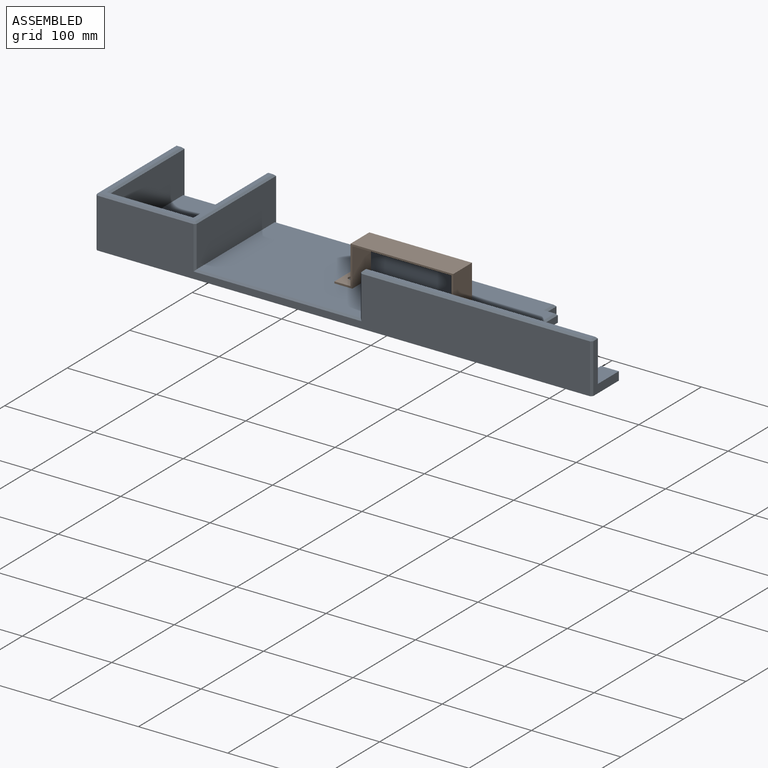
[diagram: assembled view]
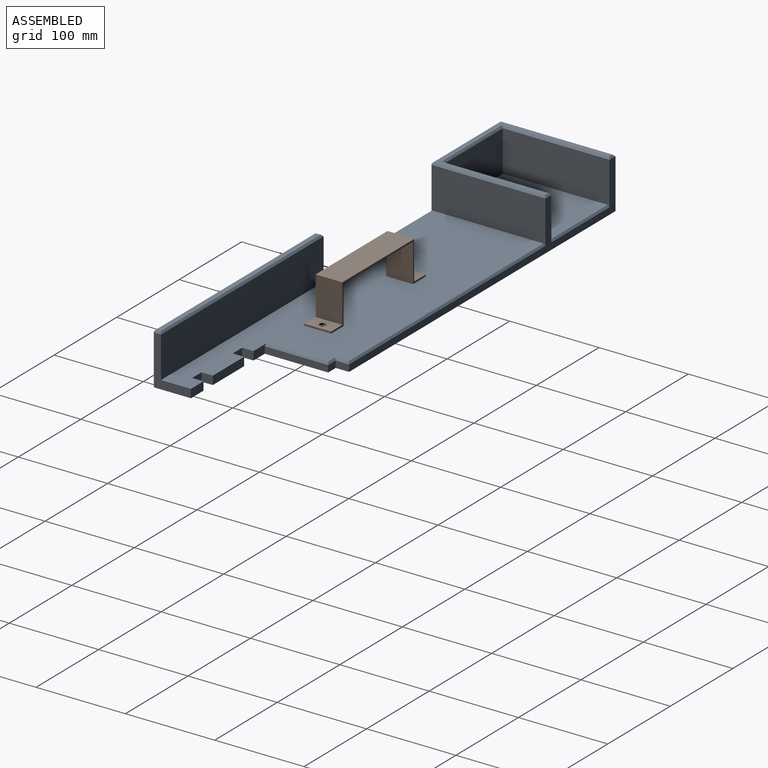
[diagram: assembled view, second angle]
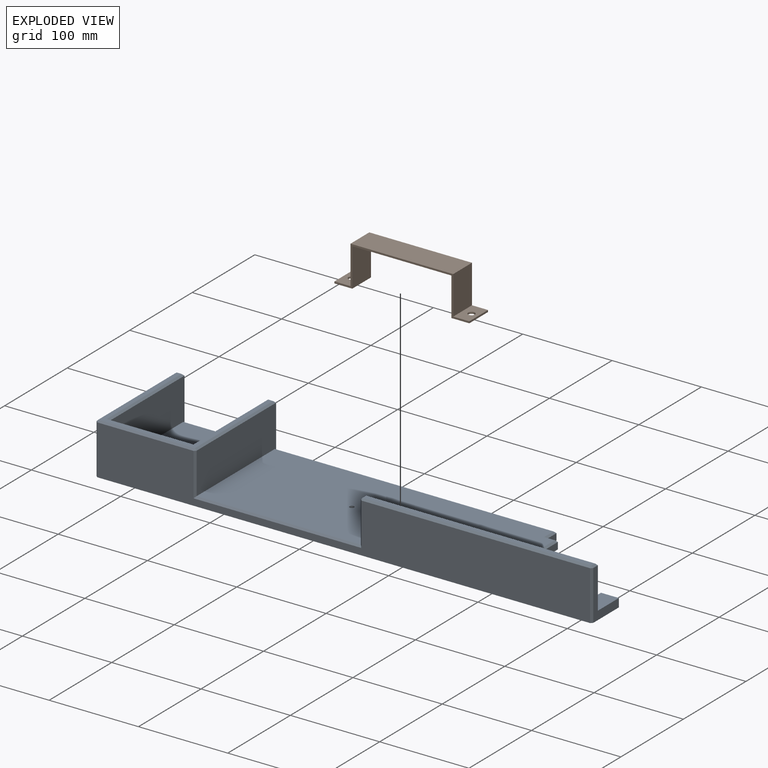
[diagram: exploded view]
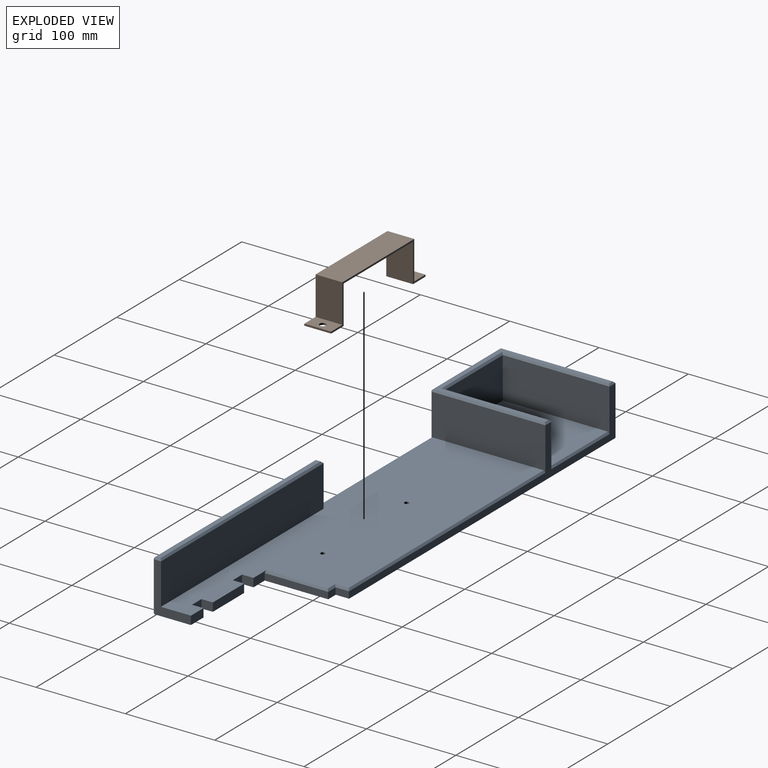
[diagram: exploded view, second angle]
ASSEMBLY  parts=2 mates=3
PART A: 55 faces, bbox 556x129x57.5 mm
  f0: plane 444x125mm, normal (0,0,1), area 42869.4mm2, adj f1,f2,f7,f8,f12,f18,f19,f20
  f1: plane 50x9.5mm, normal (0,1,0), area 475mm2, adj f0,f3,f21,f23
  f2: plane 20x9.5mm, normal (0,1,0), area 190mm2, adj f0,f3,f7,f20
  f3: plane 556x129mm, normal (0,0,-1), area 60972mm2, adj f1,f2,f5,f6,f7,f8,f9,f10
  f4: plane 117.5x93mm, normal (0,0,1), area 10927.5mm2, adj f13,f14,f15,f54
  f5: plane 127x55.5mm, normal (-1,0,0), area 7048.5mm2, adj f3,f11,f32,f33
  f6: plane 552x55.5mm, normal (0,-1,0), area 21615.8mm2, adj f3,f32,f37,f40,f41,f42,f46,f49
  f7: plane 55.5x41mm, normal (1,0,0), area 734.5mm2, adj f0,f2,f3,f27,f47,f49
  f8: plane 20x9.5mm, normal (0,1,0), area 173mm2, adj f0,f3,f9,f24,f52
  f9: plane 71.04x7.5mm, normal (1,0,0), area 532.8mm2, adj f3,f8,f10,f52
  f10: plane 12x7.5mm, normal (0,1,0), area 90mm2, adj f3,f9,f17,f53
  f11: plane 426x55.5mm, normal (0,1,0), area 4107mm2, adj f3,f5,f12,f13,f15,f17,f30,f36
  f12: plane 127x48mm, normal (1,0,0), area 5844mm2, adj f0,f11,f38,f40,f50
  f13: plane 119.5x48mm, normal (-1,0,0), area 5499mm2, adj f4,f11,f14,f34,f54
  f14: plane 93x46mm, normal (0,1,0), area 4278mm2, adj f4,f13,f15,f31
  f15: plane 119.5x48mm, normal (1,0,0), area 5499mm2, adj f4,f11,f14,f29,f54
  f16: plane 125x108mm, normal (0,0,1), area 1908.5mm2, adj f29,f30,f31,f33,f34,f36,f37,f38
  f17: plane 14.96x7.5mm, normal (1,0,0), area 112.2mm2, adj f3,f10,f11,f51
  f18: cylinder r=2.5mm len=9.5mm, axis (0,0,1), area 149.2mm2, adj f0,f3
  f19: cylinder r=2.5mm len=9.5mm, axis (0,0,1), area 149.2mm2, adj f0,f3
  f20: plane 12.71x9.5mm, normal (-1,0,0), area 120.7mm2, adj f0,f2,f3,f22
  f21: plane 12.71x9.5mm, normal (1,0,0), area 120.7mm2, adj f0,f1,f3,f22
  f22: plane 15x9.5mm, normal (0,1,0), area 142.5mm2, adj f0,f3,f20,f21
  f23: plane 12.71x9.5mm, normal (-1,0,0), area 120.7mm2, adj f0,f1,f3,f25
  f24: plane 12.71x9.5mm, normal (1,0,0), area 120.7mm2, adj f0,f3,f8,f25
  f25: plane 15x9.5mm, normal (0,1,0), area 142.5mm2, adj f0,f3,f23,f24
  f26: plane 46x7.5mm, normal (-1,0,0), area 345mm2, adj f0,f27,f42,f43
  f27: plane 260.08x46mm, normal (0,1,0), area 11963.6mm2, adj f0,f7,f26,f45
  f28: plane 256.08x5.5mm, normal (0,0,1), area 1408.4mm2, adj f43,f45,f46,f47
  f29: plane 121.5x2mm, normal (0.71,0,0.71), area 338mm2, adj f15,f16,f30,f31
  f30: plane 9.5x2mm, normal (0,0.71,0.71), area 21.2mm2, adj f11,f16,f29,f33
  f31: plane 97x2mm, normal (0,0.71,0.71), area 268.7mm2, adj f14,f16,f29,f34
  f32: plane 55.5x2mm, normal (-0.71,-0.71,0), area 157mm2, adj f3,f5,f6,f35
  f33: plane 127x2mm, normal (-0.71,0,0.71), area 356.4mm2, adj f5,f16,f30,f35
  f34: plane 121.5x2mm, normal (-0.71,0,0.71), area 338mm2, adj f13,f16,f31,f36
  f35: plane 2x2mm, normal (-0.58,-0.58,0.58), area 3.5mm2, adj f32,f33,f37
  f36: plane 9.5x2mm, normal (0,0.71,0.71), area 21.2mm2, adj f11,f16,f34,f38
  f37: plane 108x2mm, normal (0,-0.71,0.71), area 305.5mm2, adj f6,f16,f35,f39
  f38: plane 127x2mm, normal (0.71,0,0.71), area 356.4mm2, adj f12,f16,f36,f39
  f39: plane 2x2mm, normal (0.58,-0.58,0.58), area 3.5mm2, adj f37,f38,f40
  f40: plane 48x2mm, normal (0.71,-0.71,0), area 132.9mm2, adj f6,f12,f39,f41
  f41: plane 187.92x2mm, normal (0,-0.71,0.71), area 525.9mm2, adj f0,f6,f40,f42
  f42: plane 48x2mm, normal (-0.71,-0.71,0), area 132.9mm2, adj f6,f26,f41,f44
  f43: plane 7.5x2mm, normal (-0.71,0,0.71), area 18.4mm2, adj f26,f28,f44,f45
  f44: plane 2x2mm, normal (-0.58,-0.58,0.58), area 3.5mm2, adj f42,f43,f46
  f45: plane 260.08x2mm, normal (0,0.71,0.71), area 730mm2, adj f27,f28,f43,f47
  f46: plane 256.08x2mm, normal (0,-0.71,0.71), area 724.3mm2, adj f6,f28,f44,f48
  f47: plane 7.5x2mm, normal (0.71,0,0.71), area 18.4mm2, adj f7,f28,f45,f48
  f48: plane 2x2mm, normal (0.58,-0.58,0.58), area 3.5mm2, adj f46,f47,f49
  f49: plane 55.5x2mm, normal (0.71,-0.71,0), area 157mm2, adj f3,f6,f7,f48
  f50: plane 314x2mm, normal (0,0.71,0.71), area 885.3mm2, adj f0,f11,f12,f51
  f51: plane 16.96x2mm, normal (0.71,0,0.71), area 42.3mm2, adj f0,f17,f50,f53
  f52: plane 71.04x2mm, normal (0.71,0,0.71), area 198.1mm2, adj f0,f8,f9,f53
  f53: plane 14x2mm, normal (0,0.71,0.71), area 33.9mm2, adj f0,f10,f51,f52
  f54: plane 93x2mm, normal (0,0.71,0.71), area 263mm2, adj f4,f11,f13,f15
PART B: 16 faces, bbox 151x45x30 mm
  f0: plane 30x18mm, normal (0,1,0), area 495.5mm2, adj f1,f11,f12,f13,f15
  f1: plane 30x2mm, normal (-1,0,0), area 60mm2, adj f0,f2,f12,f13
  f2: plane 30x20mm, normal (0,-1,0), area 555.5mm2, adj f1,f3,f12,f13,f15
  f3: plane 43x30mm, normal (1,0,0), area 1290mm2, adj f2,f4,f12,f13
  f4: plane 111x30mm, normal (0,-1,0), area 3330mm2, adj f3,f5,f12,f13
  f5: plane 43x30mm, normal (-1,0,0), area 1290mm2, adj f4,f6,f12,f13
  f6: plane 30x20mm, normal (0,-1,0), area 557.4mm2, adj f5,f7,f12,f13,f14
  f7: plane 30x2mm, normal (1,0,0), area 60mm2, adj f6,f8,f12,f13
  f8: plane 30x18mm, normal (0,1,0), area 497.4mm2, adj f7,f9,f12,f13,f14
  f9: plane 43x30mm, normal (1,0,0), area 1290mm2, adj f8,f10,f12,f13
  f10: plane 115x30mm, normal (0,1,0), area 3450mm2, adj f9,f11,f12,f13
  f11: plane 43x30mm, normal (-1,0,0), area 1290mm2, adj f0,f10,f12,f13
  f12: plane 151x45mm, normal (0,0,1), area 474mm2, adj f0,f1,f2,f3,f4,f5,f6,f7
  f13: plane 151x45mm, normal (0,0,-1), area 474mm2, adj f0,f1,f2,f3,f4,f5,f6,f7
  f14: cylinder r=3.68mm len=7.37mm, axis (0,1,0), area 46.3mm2, adj f6,f8
  f15: cylinder r=3.76mm len=7.52mm, axis (0,1,0), area 47.3mm2, adj f0,f2
PLACE A t=(-132.92,106.54,25.04)mm
PLACE B rot(axis=(1,0,0),90deg) t=(129.42,186.04,14.01)mm
MATE slider B.f15 <-> A.f19  axis (0,0,1) through (109.08,171.04,36.54)mm
MATE planar B.f15 <-> A.f19  axis (0,0,-1) through (109.08,171.04,34.54)mm
MATE slider B.f14 <-> A.f18  axis (0,0,-1) through (243.08,171.04,34.54)mm
